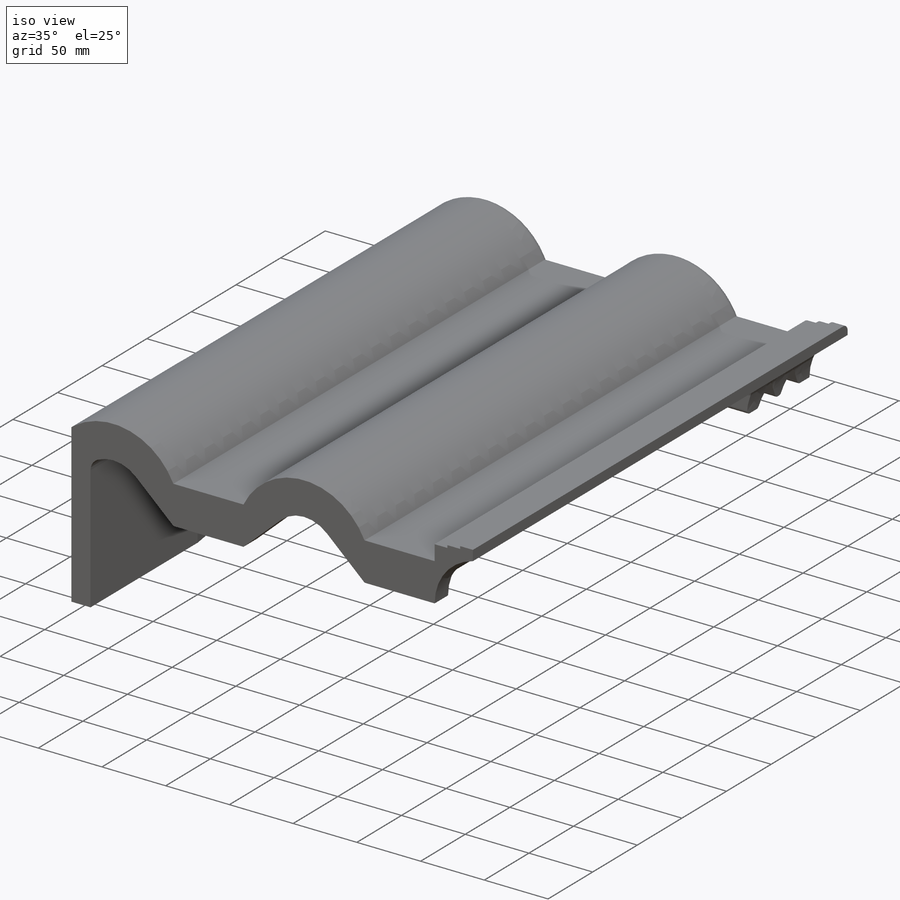
[diagram: iso view]
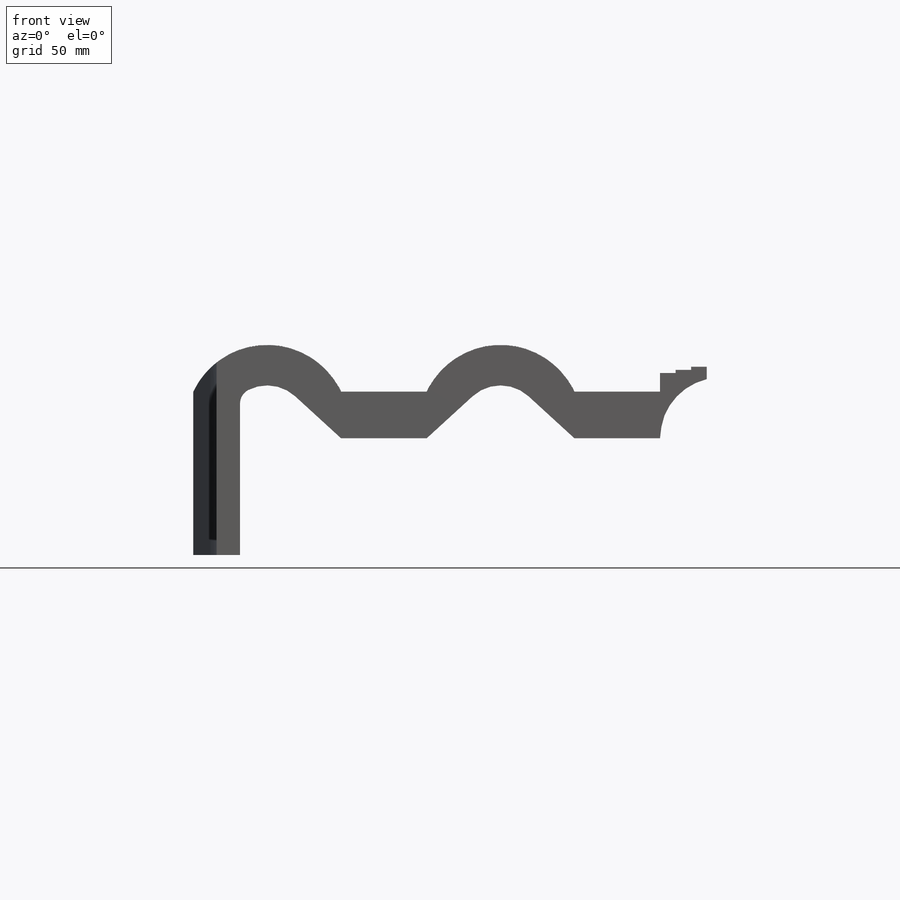
[diagram: front view]
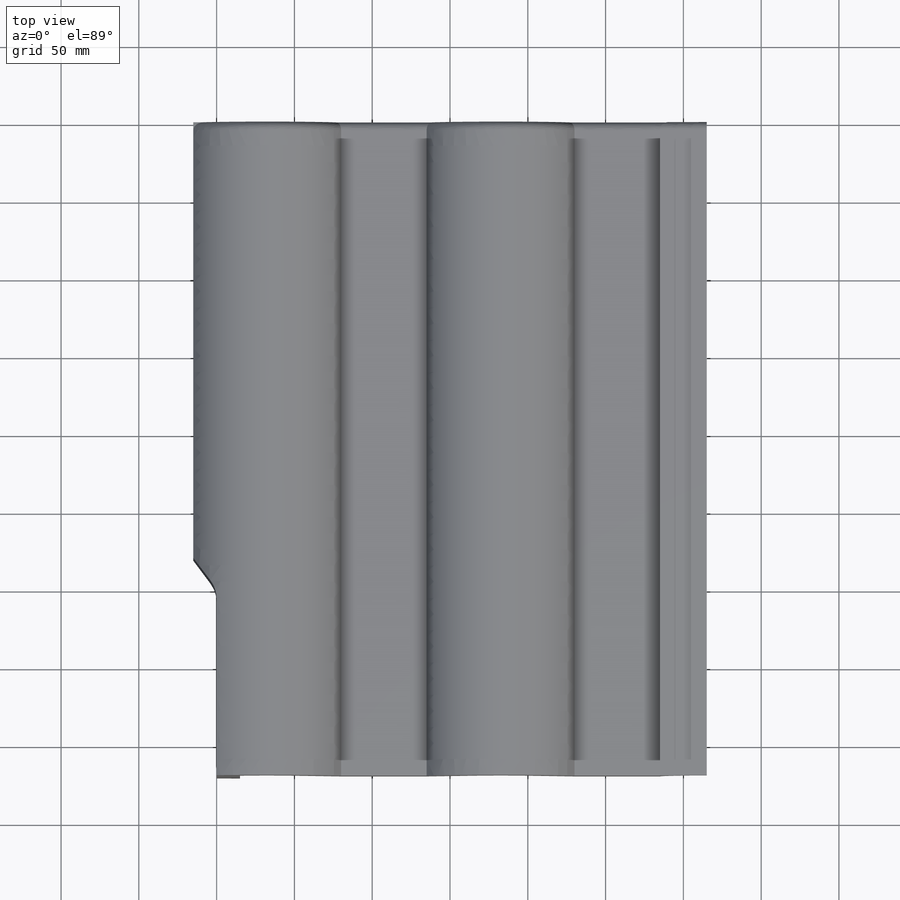
[diagram: top view]
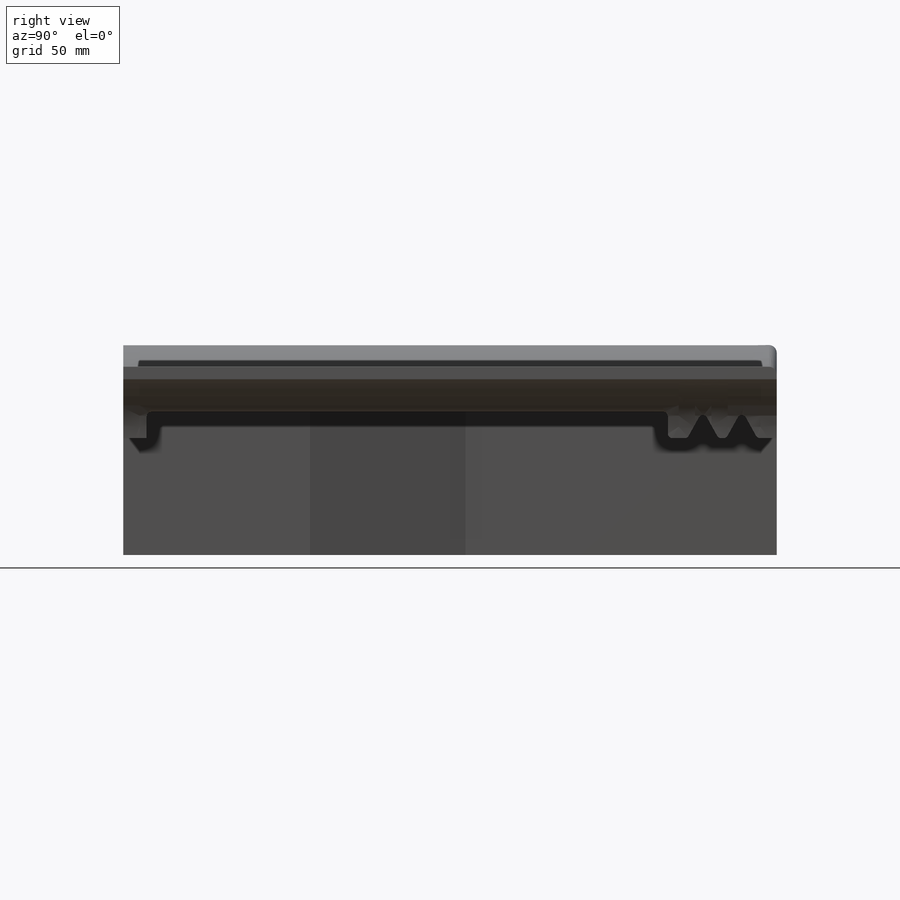
[diagram: right view]
SOLIDWORKS PART (.sldprt)
format: sldprt  version: not decoded by parser v0  size: 1,654,784 bytes
history: native  units: mm
features: sketch x21, cut_extrude x14, plane x8, fillet x8, extrude x7, chamfer x2, material x1 (+14 scaffold rows collapsed)
feature tree (75):
  scaffold x14  (default folders/planes/origin — collapsed)
  material  "Materiál <není určen>"
  plane  "Přední rovina"
  plane  "Horní rovina"
  plane  "Pravá rovina"
  sketch  "Skica1"  dims[D1=330.0mm D2=60.0mm]
  extrude  "Vysunout1"  Depth=420mm
  sketch  "Skica2"  dims[c1.D4=~52.604167mm c1.D16=~26.604167mm c1.D2=55.0mm c1.D3=55.0mm c2.D2=55.0mm c2.D3=95.0mm c2.D4=30.0mm c2.D5=12.0mm c2.D6=46.0mm c2.D7=44.0mm c2.D8=10.0mm c2.D10=55.0mm c2.D11=10.0mm c2.D12=35.0mm c2.D13=5.0mm c2.D14=~21.117723mm c3.D13=10.0mm c3.D14=8.0mm c3.D15=27.5mm c3.D16=15.0mm c4.D14=8.0mm c4.D16=95.0mm c4.D1=30.0mm c4.D9=26.0mm]
  cut_extrude  "Vysunout2"  [1 undecoded]
  fillet  "Zaoblit1"  Radius=5mm
  plane  "Rovina1"  Offset=15mm
  sketch  "Skica3"  dims[D1=13.0mm]
  cut_extrude  "Vysunout4"  Depth=335mm
  sketch  "Skica4"  dims[c1.D1=20.0mm c1.D2=14.0mm c1.D3=18.0mm c2.D2=5.0mm c2.D4=12.5mm]
  cut_extrude  "Vysunout5"  Depth=410mm
  fillet  "Zaoblit4"  Radius=5mm
  fillet  "Zaoblit2"  Radius=3mm
  fillet  "Zaoblit3"  Radius=5mm
  plane  "Rovina2"  Offset=100mm
  plane  "Rovina3"
  plane  "Rovina4"  Offset=310mm
  sketch  "Skica6"  dims[c1.D4=70.0mm c1.D1=85.0mm c1.D2=85.0mm c1.D3=~71.028596mm c2.D4=~71.028596mm c2.D3=~71.028596mm c3.D4=~71.028596mm c3.D3=~71.028596mm c4.D4=~71.028596mm c4.D1=85.0mm c4.D2=155.0mm c4.D3=5.0mm]
  extrude  "Vysunout6"  [1 undecoded]
  sketch  "Skica7"  dims[D1=15.0mm]
  cut_extrude  "Vysunout7"  Depth=120mm
  sketch  "Skica8"
  extrude  "Vysunout8"  Depth=90mm
  sketch  "Skica9"
  cut_extrude  "Vysunout9"  Depth=10mm
  plane  "Rovina5"  Offset=100mm
  sketch  "Skica10"  dims[D1=15.0mm]
  extrude  "Vysunout10"  Depth=65mm
  sketch  "Skica12"  dims[D1=135.0mm D2=30.0mm]
  extrude  "Vysunout11"  [1 undecoded]
  sketch  "Skica13"  dims[D1=15.0mm]
  cut_extrude  "Vysunout12"  Depth=140mm
  chamfer  "Zkosení1"  Distance=20mm
  sketch  "Skica14"
  cut_extrude  "Vysunout13"  Depth=200mm
  sketch  "Skica15"
  cut_extrude  "Vysunout14"  [1 undecoded]
  fillet  "Zaoblit5"  Radius=10mm
  fillet  "Zaoblit8"  Radius=20mm
  sketch  "Skica16"
  cut_extrude  "Vysunout15"  [1 undecoded]
  sketch  "Skica17"  dims[D1=370.0mm D2=60.0mm]
  extrude  "Vysunout17"  [1 undecoded]
  sketch  "Skica18"  dims[D1=135.0mm D2=30.0mm]
  extrude  "Vysunout18"  [1 undecoded]
  sketch  "Skica19"  dims[c1.D1=55.0mm c1.D2=55.0mm c2.D1=30.0mm]
  cut_extrude  "Vysunout19"  [1 undecoded]
  sketch  "Skica20"
  cut_extrude  "Vysunout20"  Depth=200mm
  sketch  "Skica21"  dims[D1=15.0mm]
  cut_extrude  "Vysunout21"  Depth=140mm
  chamfer  "Zkosení2"  Distance=20mm
  fillet  "Zaoblit10"  Radius=20mm
  sketch  "Skica22"
  cut_extrude  "Vysunout22"  [1 undecoded]
  fillet  "Zaoblit13"  Radius=5mm
  sketch  "Skica23"  dims[D1=180.0mm D2=15.0mm]
  cut_extrude  "Vysunout23"  [1 undecoded]
decode coverage: 35 of 52 modeling features carry decoded parameters
note: ~ marks probable driven/reference dimensions
note: 10 parameter values undecoded
summary: no parameter record found for 10 features
note: suppression state not decoded; provenance and decode notes live in map.json
